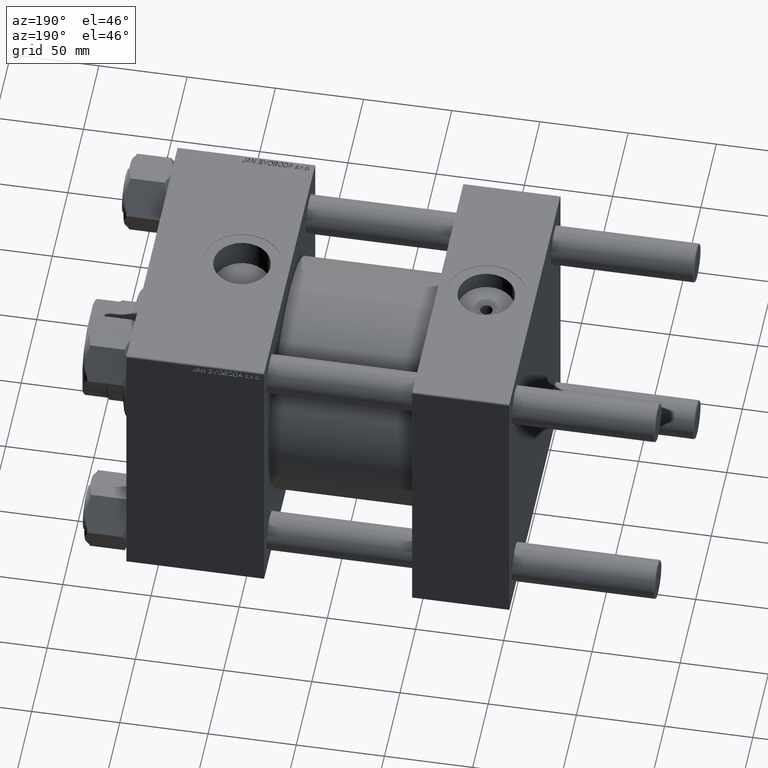
[diagram: clean part render]
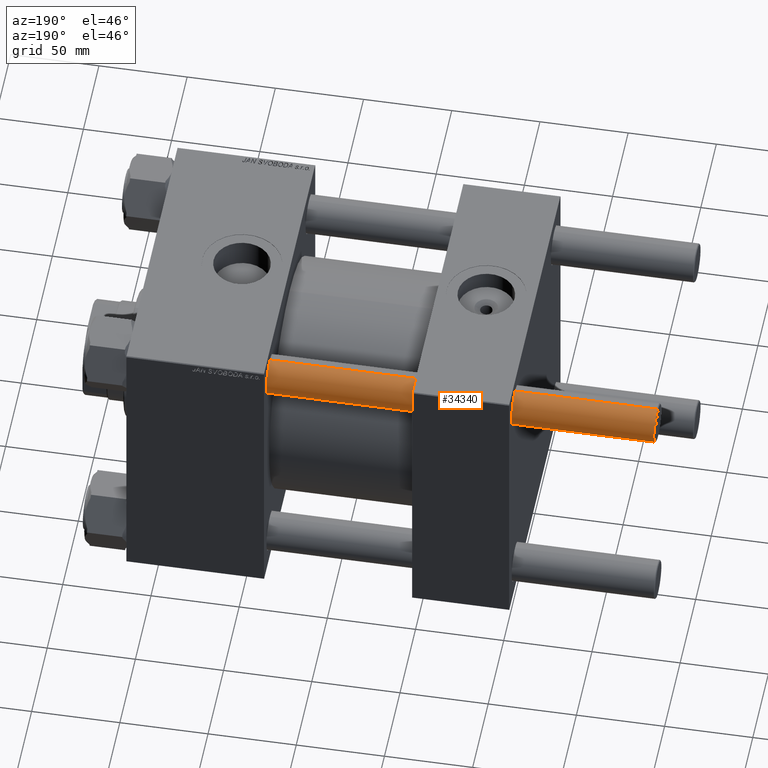
[diagram: same view with one face highlighted and labeled with its STEP entity id]
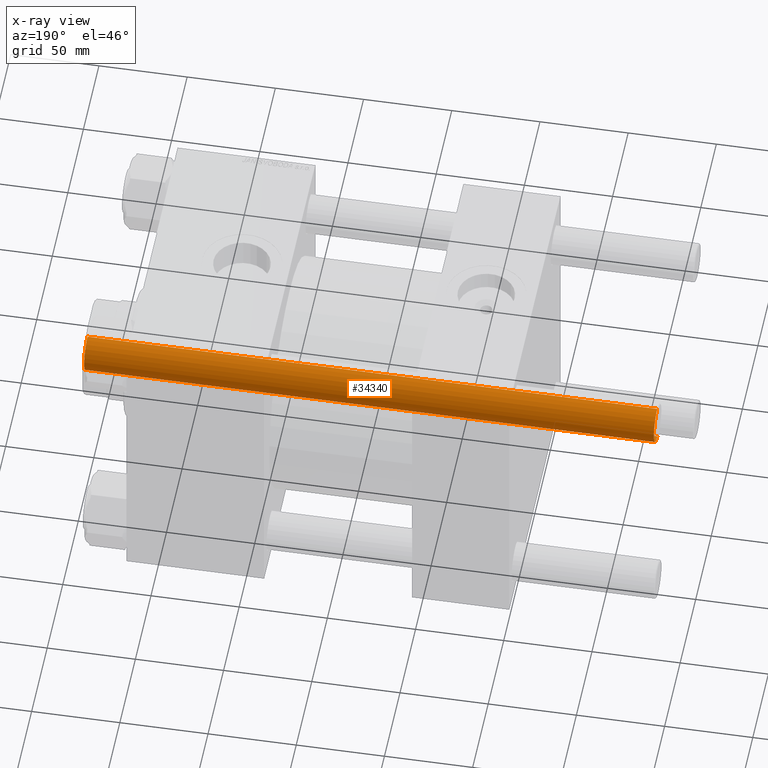
[diagram: x-ray of the same camera — body ghosted, the highlighted face saturated]
A machine part, auxiliary view. The second image highlights one B-rep face of the part: STEP entity #34340.
The next image is the same camera in x-ray: the body ghosted, the highlighted face saturated — about 0% of this face is hidden behind the body in this view.
In plain terms, the highlighted cylindrical surface (edge-blend (fillet) strip) has radius 11 mm, axis along (-1, -0, -0).
Its self-contained STEP definition (entity closure, byte-faithful):
#347 = EDGE_CURVE ( 'NONE', #26802, #26300, #40205, .T. ) ;
#690 = CARTESIAN_POINT ( 'NONE',  ( -11.00000000000000000, 0.000000000000000000, 324.0000000000000000 ) ) ;
#848 = VERTEX_POINT ( 'NONE', #49825 ) ;
#1674 = EDGE_CURVE ( 'NONE', #26802, #848, #19050, .T. ) ;
#2112 = CARTESIAN_POINT ( 'NONE',  ( 0.000000000000000000, 0.000000000000000000, 0.5000000000000559552 ) ) ;
#2684 = ORIENTED_EDGE ( 'NONE', *, *, #1674, .T. ) ;
#2861 = CARTESIAN_POINT ( 'NONE',  ( 0.000000000000000000, 0.000000000000000000, 323.5000000000000000 ) ) ;
#6027 = VERTEX_POINT ( 'NONE', #37422 ) ;
#7946 = ORIENTED_EDGE ( 'NONE', *, *, #8896, .T. ) ;
#8043 = EDGE_CURVE ( 'NONE', #848, #6027, #32717, .T. ) ;
#8896 = EDGE_CURVE ( 'NONE', #6027, #26300, #15073, .T. ) ;
#9619 = CARTESIAN_POINT ( 'NONE',  ( -11.00000000000000000, 0.000000000000000000, 0.5000000000000559552 ) ) ;
#10638 = DIRECTION ( 'NONE',  ( -0.000000000000000000, -0.000000000000000000, -1.000000000000000000 ) ) ;
#13347 = DIRECTION ( 'NONE',  ( -0.000000000000000000, -0.000000000000000000, 1.000000000000000000 ) ) ;
#14466 = CYLINDRICAL_SURFACE ( 'NONE', #34272, 11.00000000000000000 ) ;
#15073 = CIRCLE ( 'NONE', #15903, 11.00000000000000000 ) ;
#15595 = DIRECTION ( 'NONE',  ( 1.000000000000000000, 0.000000000000000000, 0.000000000000000000 ) ) ;
#15903 = AXIS2_PLACEMENT_3D ( 'NONE', #2112, #13347, #37325 ) ;
#17975 = EDGE_LOOP ( 'NONE', ( #2684, #44040, #7946, #46058 ) ) ;
#19050 = CIRCLE ( 'NONE', #24734, 11.00000000000000000 ) ;
#21501 = DIRECTION ( 'NONE',  ( -0.000000000000000000, -0.000000000000000000, -1.000000000000000000 ) ) ;
#24734 = AXIS2_PLACEMENT_3D ( 'NONE', #2861, #38810, #15595 ) ;
#25174 = FACE_OUTER_BOUND ( 'NONE', #17975, .T. ) ;
#26300 = VERTEX_POINT ( 'NONE', #9619 ) ;
#26375 = CARTESIAN_POINT ( 'NONE',  ( -11.00000000000000000, 0.000000000000000000, 323.5000000000000000 ) ) ;
#26802 = VERTEX_POINT ( 'NONE', #26375 ) ;
#27733 = DIRECTION ( 'NONE',  ( -0.000000000000000000, -0.000000000000000000, -1.000000000000000000 ) ) ;
#28756 = VECTOR ( 'NONE', #27733, 1000.000000000000000 ) ;
#29774 = CARTESIAN_POINT ( 'NONE',  ( 0.000000000000000000, 0.000000000000000000, 324.0000000000000000 ) ) ;
#32717 = LINE ( 'NONE', #32983, #43527 ) ;
#32983 = CARTESIAN_POINT ( 'NONE',  ( 11.00000000000000000, 1.347111479062088405E-15, 324.0000000000000000 ) ) ;
#34272 = AXIS2_PLACEMENT_3D ( 'NONE', #29774, #10638, #40983 ) ;
#34340 = ADVANCED_FACE ( 'NONE', ( #25174 ), #14466, .T. ) ;
#37325 = DIRECTION ( 'NONE',  ( 1.000000000000000000, 0.000000000000000000, 0.000000000000000000 ) ) ;
#37422 = CARTESIAN_POINT ( 'NONE',  ( 11.00000000000000000, 1.347111479062088405E-15, 0.5000000000000559552 ) ) ;
#38810 = DIRECTION ( 'NONE',  ( 0.000000000000000000, 0.000000000000000000, -1.000000000000000000 ) ) ;
#40205 = LINE ( 'NONE', #690, #28756 ) ;
#40983 = DIRECTION ( 'NONE',  ( -1.000000000000000000, 0.000000000000000000, 0.000000000000000000 ) ) ;
#43527 = VECTOR ( 'NONE', #21501, 1000.000000000000000 ) ;
#44040 = ORIENTED_EDGE ( 'NONE', *, *, #8043, .T. ) ;
#46058 = ORIENTED_EDGE ( 'NONE', *, *, #347, .F. ) ;
#49825 = CARTESIAN_POINT ( 'NONE',  ( 11.00000000000000000, 1.347111479062088405E-15, 323.5000000000000000 ) ) ;